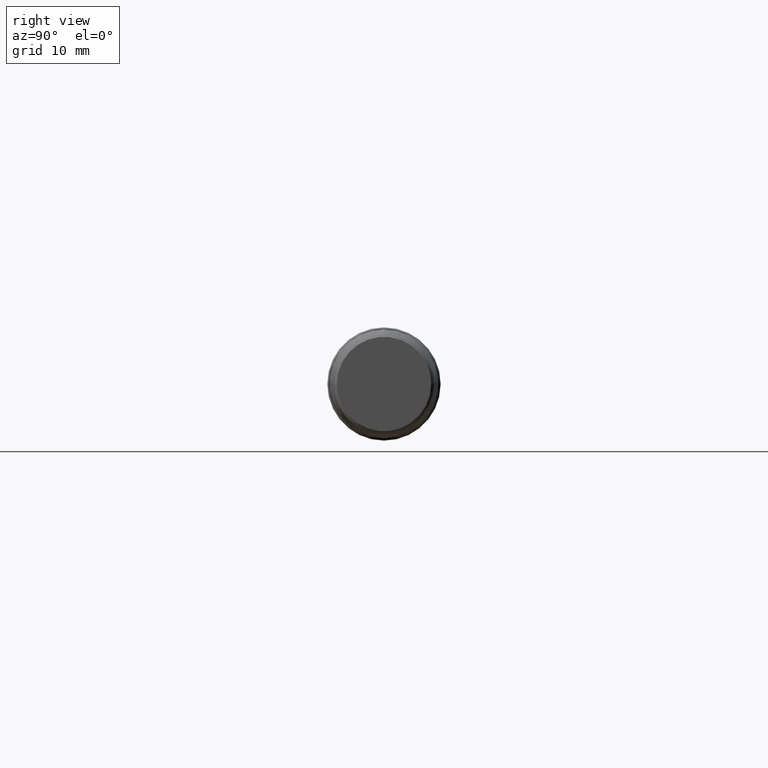
[diagram: clean part render]
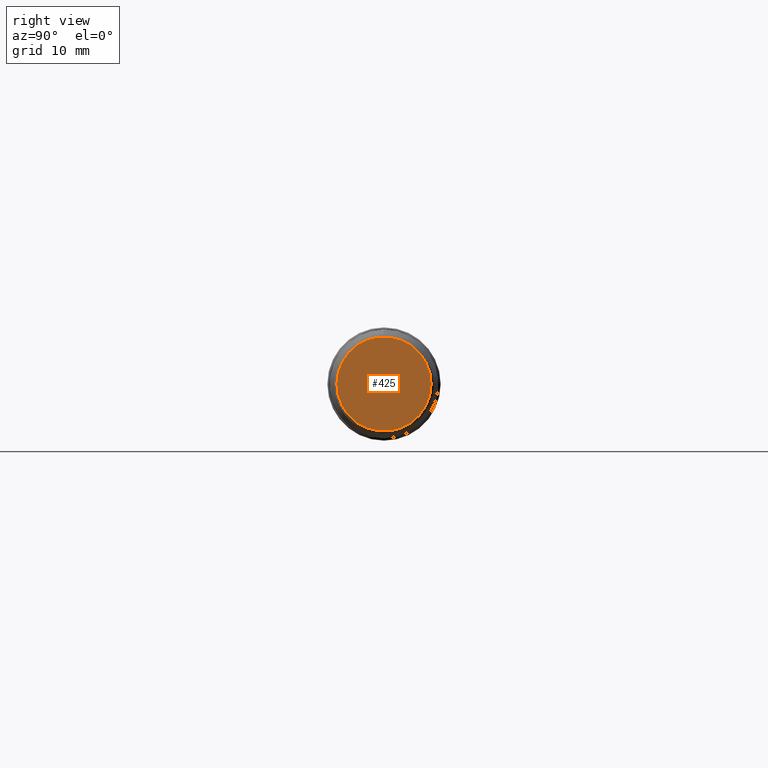
[diagram: same view with one face highlighted and labeled with its STEP entity id]
A machine part, right view. The second image highlights one B-rep face of the part: STEP entity #425.
In plain terms, the highlighted planar face has unit normal (1, -0, 0).
Its self-contained STEP definition (entity closure, byte-faithful):
#72 = FACE_OUTER_BOUND ( 'NONE', #237, .T. ) ;
#99 = DIRECTION ( 'NONE',  ( 0.0000000000000000000, 0.0000000000000000000, -1.000000000000000000 ) ) ;
#123 = VERTEX_POINT ( 'NONE', #411 ) ;
#211 = CIRCLE ( 'NONE', #1023, 7.499999999999958300 ) ;
#237 = EDGE_LOOP ( 'NONE', ( #829, #788 ) ) ;
#269 = CARTESIAN_POINT ( 'NONE',  ( 113.5000000000000400, 3.851859888511129600E-029, 0.0000000000000000000 ) ) ;
#287 = CARTESIAN_POINT ( 'NONE',  ( 113.5000000000000400, 3.851859888511129600E-029, 0.0000000000000000000 ) ) ;
#411 = CARTESIAN_POINT ( 'NONE',  ( 113.5000000000000400, -7.499999999999958300, 0.0000000000000000000 ) ) ;
#425 = ADVANCED_FACE ( 'NONE', ( #72 ), #1033, .T. ) ;
#435 = AXIS2_PLACEMENT_3D ( 'NONE', #287, #743, #937 ) ;
#572 = CARTESIAN_POINT ( 'NONE',  ( 113.5000000000000000, -7.590000000000000700, 7.590000000000000700 ) ) ;
#658 = CIRCLE ( 'NONE', #435, 7.499999999999958300 ) ;
#743 = DIRECTION ( 'NONE',  ( 1.000000000000000000, 9.251858538542973800E-016, 0.0000000000000000000 ) ) ;
#751 = DIRECTION ( 'NONE',  ( 1.000000000000000000, -0.0000000000000000000, 0.0000000000000000000 ) ) ;
#788 = ORIENTED_EDGE ( 'NONE', *, *, #1049, .T. ) ;
#829 = ORIENTED_EDGE ( 'NONE', *, *, #943, .T. ) ;
#873 = AXIS2_PLACEMENT_3D ( 'NONE', #572, #751, #99 ) ;
#924 = DIRECTION ( 'NONE',  ( 1.000000000000000000, 9.251858538542973800E-016, 0.0000000000000000000 ) ) ;
#937 = DIRECTION ( 'NONE',  ( 0.0000000000000000000, -1.000000000000000000, 0.0000000000000000000 ) ) ;
#943 = EDGE_CURVE ( 'NONE', #123, #1172, #211, .T. ) ;
#1019 = DIRECTION ( 'NONE',  ( 0.0000000000000000000, -1.000000000000000000, 0.0000000000000000000 ) ) ;
#1023 = AXIS2_PLACEMENT_3D ( 'NONE', #269, #924, #1019 ) ;
#1033 = PLANE ( 'NONE',  #873 ) ;
#1049 = EDGE_CURVE ( 'NONE', #1172, #123, #658, .T. ) ;
#1170 = CARTESIAN_POINT ( 'NONE',  ( 113.5000000000000400, 7.499999999999958300, 9.452489964259533600E-016 ) ) ;
#1172 = VERTEX_POINT ( 'NONE', #1170 ) ;